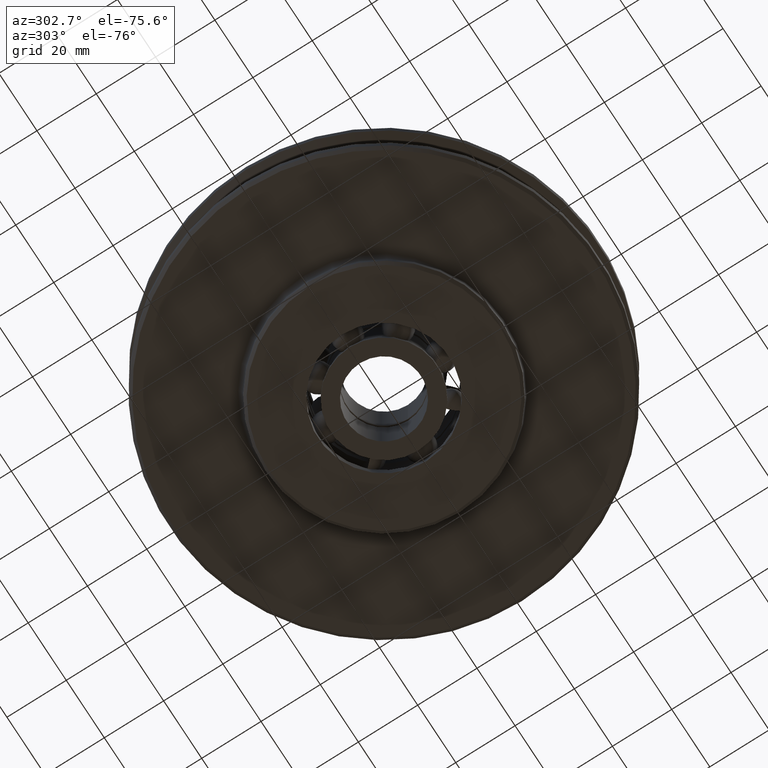
[diagram: clean part render]
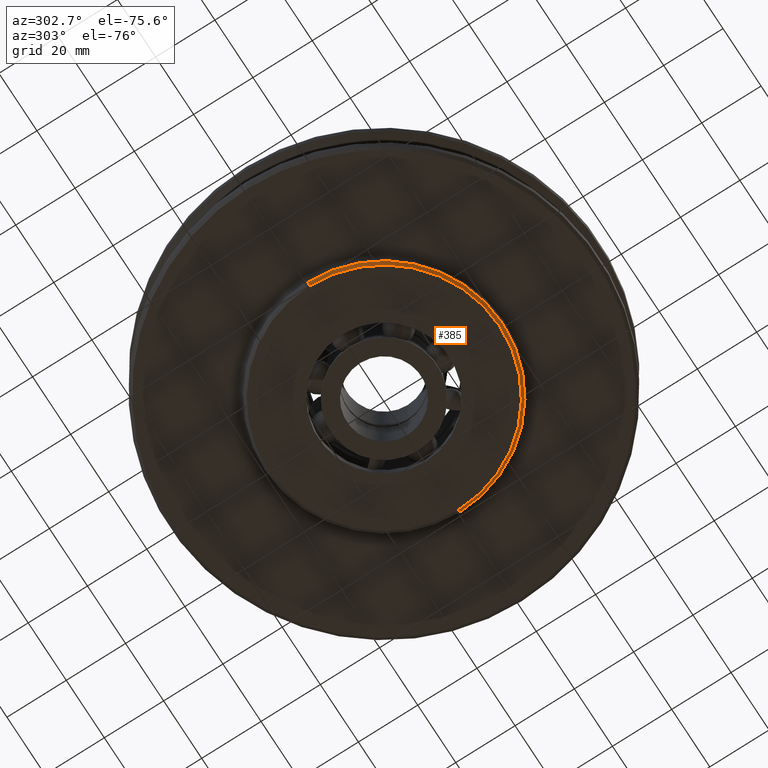
[diagram: same view with one face highlighted and labeled with its STEP entity id]
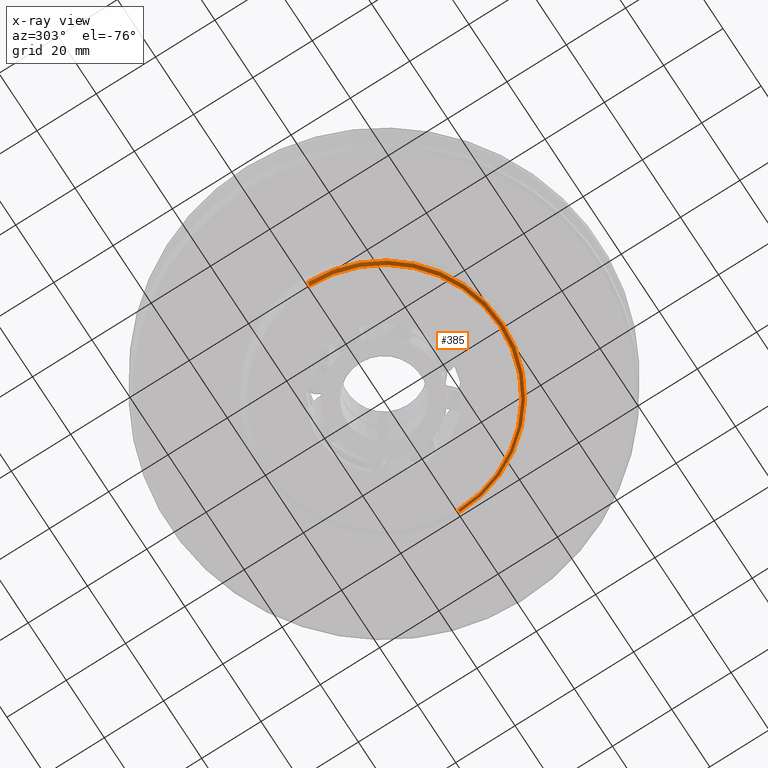
[diagram: x-ray of the same camera — body ghosted, the highlighted face saturated]
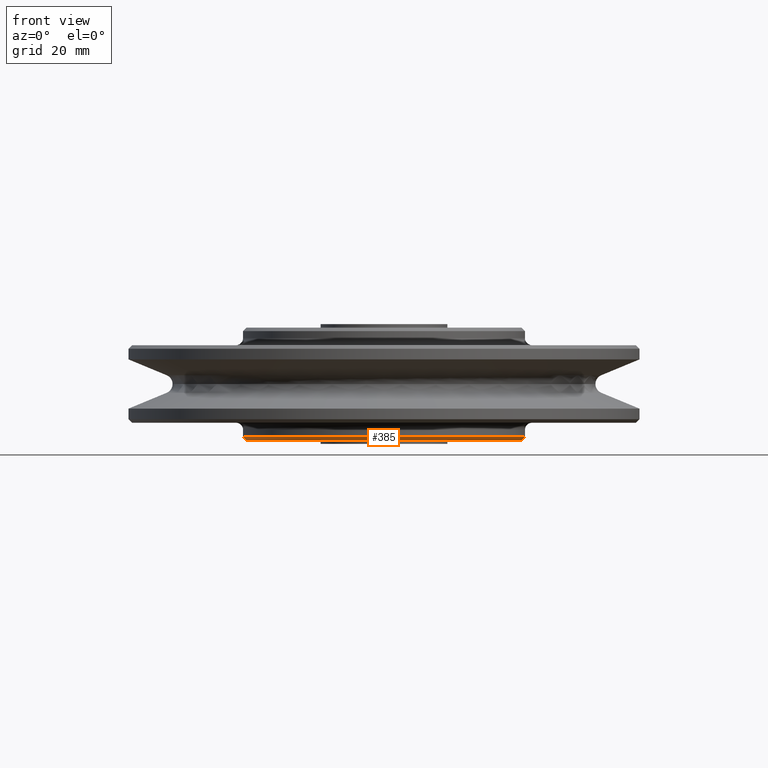
[diagram: same view with one face highlighted and labeled with its STEP entity id]
A machine part, auxiliary view. The second image highlights one B-rep face of the part: STEP entity #385.
The next image is the same camera in x-ray: the body ghosted, the highlighted face saturated — about 0% of this face is hidden behind the body in this view.
A second angle (front view) of the same face is appended — the face is thin or edge-on in the first view.
In plain terms, the highlighted conical surface has half-angle 45 deg.
Its self-contained STEP definition (entity closure, byte-faithful):
#385=ADVANCED_FACE('',(#795),#796,.T.);
#795=FACE_OUTER_BOUND('',#1205,.T.);
#796=CONICAL_SURFACE('',#1206,39.5,0.785398163397448);
#1205=EDGE_LOOP('',(#2491,#2492,#2493,#2494));
#1206=AXIS2_PLACEMENT_3D('',#2495,#2496,#2497);
#2491=ORIENTED_EDGE('',*,*,#2683,.T.);
#2492=ORIENTED_EDGE('',*,*,#3088,.F.);
#2493=ORIENTED_EDGE('',*,*,#2685,.T.);
#2494=ORIENTED_EDGE('',*,*,#3086,.T.);
#2495=CARTESIAN_POINT('',(0.0,0.0,-15.5));
#2496=DIRECTION('',(-0.0,-0.0,1.0));
#2497=DIRECTION('',(1.0,0.0,0.0));
#2683=EDGE_CURVE('',#3306,#3299,#3307,.T.);
#2685=EDGE_CURVE('',#3301,#3308,#3310,.T.);
#3086=EDGE_CURVE('',#3308,#3306,#3903,.T.);
#3088=EDGE_CURVE('',#3301,#3299,#3905,.T.);
#3299=VERTEX_POINT('',#4828);
#3301=VERTEX_POINT('',#4831);
#3306=VERTEX_POINT('',#4837);
#3307=LINE('',#4838,#4839);
#3308=VERTEX_POINT('',#4840);
#3310=LINE('',#4842,#4843);
#3903=CIRCLE('',#7822,39.0);
#3905=CIRCLE('',#7824,40.0);
#4828=CARTESIAN_POINT('',(40.0,0.0,-15.0));
#4831=CARTESIAN_POINT('',(-40.0,4.89858719658941E-015,-15.0));
#4837=CARTESIAN_POINT('',(39.0,0.0,-16.0));
#4838=CARTESIAN_POINT('',(39.5,-4.83735485663204E-015,-15.5));
#4839=VECTOR('',#8004,1.0);
#4840=CARTESIAN_POINT('',(-39.0,4.77612251667468E-015,-16.0));
#4842=CARTESIAN_POINT('',(-39.5,4.83735485663204E-015,-15.5));
#4843=VECTOR('',#8008,1.0);
#7822=AXIS2_PLACEMENT_3D('',#8436,#8437,#8438);
#7824=AXIS2_PLACEMENT_3D('',#8439,#8440,#8441);
#8004=DIRECTION('',(0.707106781186547,-8.65956056235493E-017,0.707106781186548));
#8008=DIRECTION('',(0.707106781186547,-8.65956056235493E-017,-0.707106781186548));
#8436=CARTESIAN_POINT('',(0.0,0.0,-16.0));
#8437=DIRECTION('',(0.0,0.0,1.0));
#8438=DIRECTION('',(1.0,0.0,0.0));
#8439=CARTESIAN_POINT('',(0.0,0.0,-15.0));
#8440=DIRECTION('',(0.0,0.0,1.0));
#8441=DIRECTION('',(1.0,0.0,0.0));